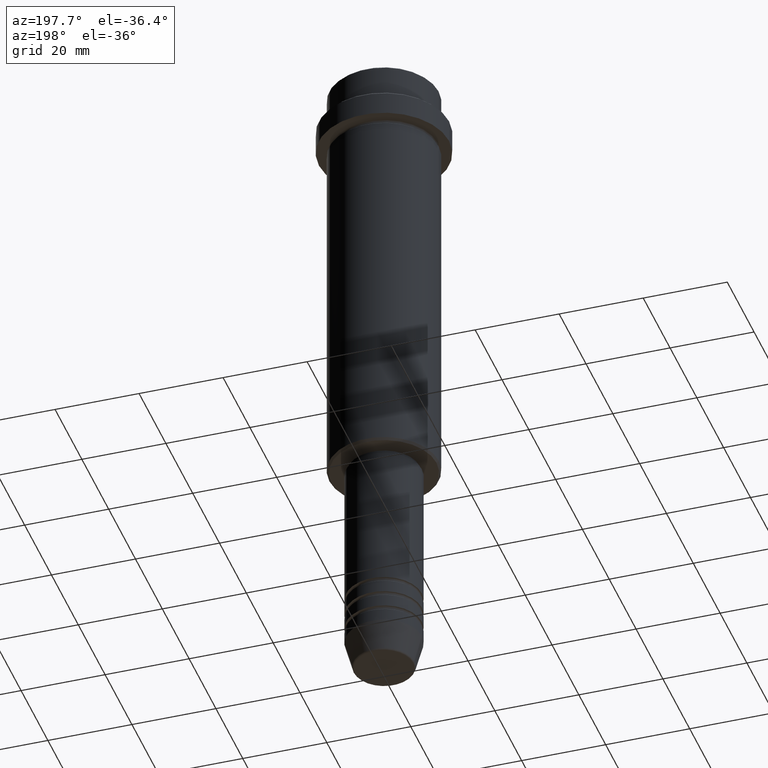
[diagram: clean part render]
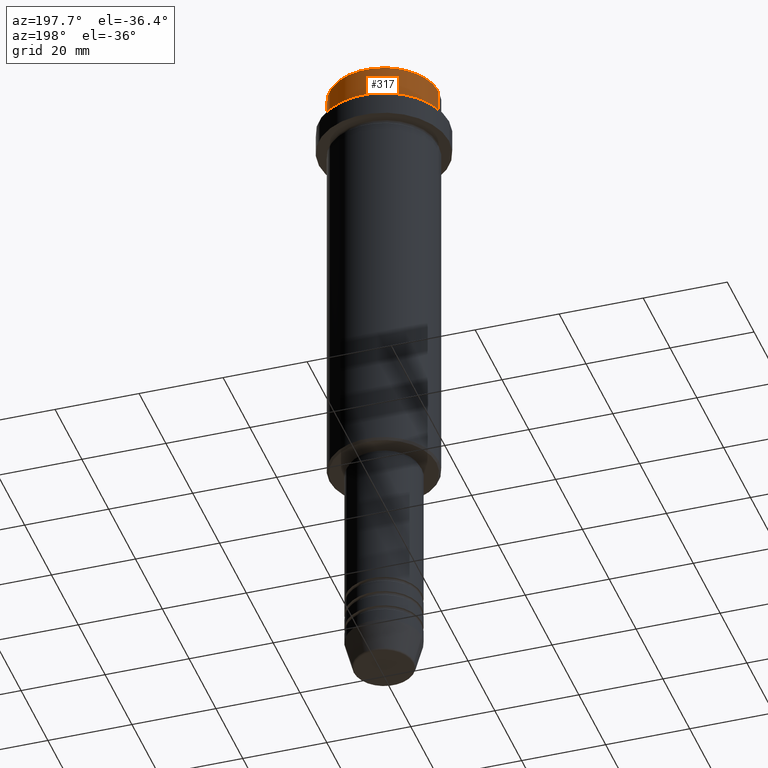
[diagram: same view with one face highlighted and labeled with its STEP entity id]
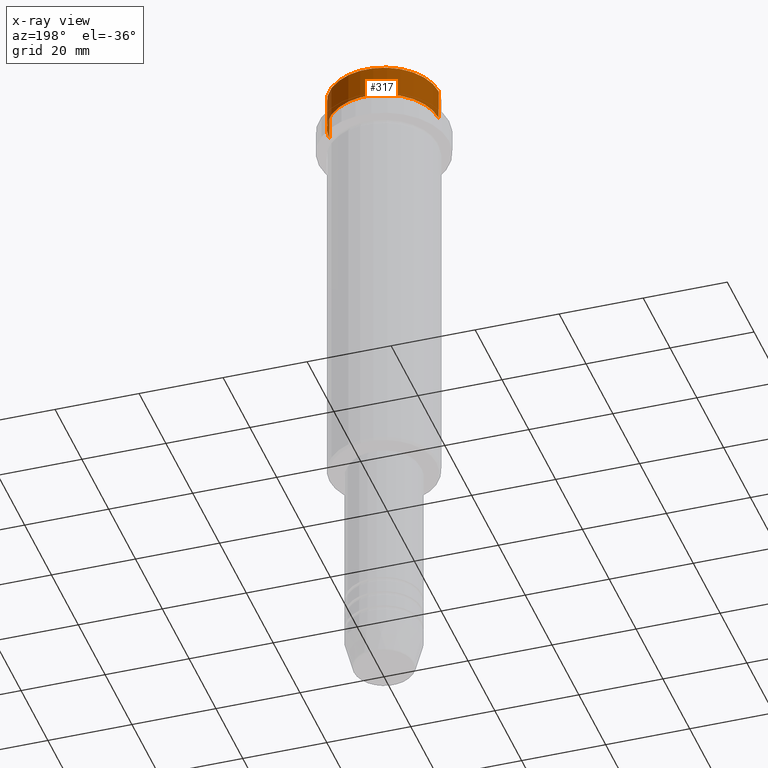
[diagram: x-ray of the same camera — body ghosted, the highlighted face saturated]
A machine part, auxiliary view. The second image highlights one B-rep face of the part: STEP entity #317.
The next image is the same camera in x-ray: the body ghosted, the highlighted face saturated — about 0% of this face is hidden behind the body in this view.
In plain terms, the highlighted cylindrical surface (partial cylindrical patch) has radius 13 mm, axis along (-0, -0, 1).
Its self-contained STEP definition (entity closure, byte-faithful):
#26 = LINE ( 'NONE', #686, #1267 ) ;
#145 = EDGE_CURVE ( 'NONE', #776, #730, #159, .T. ) ;
#159 = LINE ( 'NONE', #1028, #470 ) ;
#211 = CARTESIAN_POINT ( 'NONE',  ( 0.000000000000000000, 0.000000000000000000, -0.4999999999999622524 ) ) ;
#257 = DIRECTION ( 'NONE',  ( -0.000000000000000000, -0.000000000000000000, 1.000000000000000000 ) ) ;
#317 = ADVANCED_FACE ( 'NONE', ( #694 ), #1100, .T. ) ;
#324 = DIRECTION ( 'NONE',  ( 1.000000000000000000, 0.000000000000000000, 0.000000000000000000 ) ) ;
#379 = CIRCLE ( 'NONE', #569, 12.99999999999999822 ) ;
#432 = AXIS2_PLACEMENT_3D ( 'NONE', #211, #1175, #1396 ) ;
#470 = VECTOR ( 'NONE', #494, 1000.000000000000000 ) ;
#494 = DIRECTION ( 'NONE',  ( -0.000000000000000000, -0.000000000000000000, 1.000000000000000000 ) ) ;
#531 = CARTESIAN_POINT ( 'NONE',  ( 12.99999999999999822, 0.000000000000000000, -0.4999999999999622524 ) ) ;
#569 = AXIS2_PLACEMENT_3D ( 'NONE', #1407, #865, #324 ) ;
#609 = EDGE_LOOP ( 'NONE', ( #958, #962, #647, #1416 ) ) ;
#647 = ORIENTED_EDGE ( 'NONE', *, *, #1099, .T. ) ;
#686 = CARTESIAN_POINT ( 'NONE',  ( -12.99999999999999822, 1.592040838891558898E-15, 0.000000000000000000 ) ) ;
#694 = FACE_OUTER_BOUND ( 'NONE', #609, .T. ) ;
#701 = AXIS2_PLACEMENT_3D ( 'NONE', #900, #257, #815 ) ;
#730 = VERTEX_POINT ( 'NONE', #531 ) ;
#737 = VERTEX_POINT ( 'NONE', #969 ) ;
#746 = EDGE_CURVE ( 'NONE', #776, #737, #379, .T. ) ;
#769 = VERTEX_POINT ( 'NONE', #885 ) ;
#776 = VERTEX_POINT ( 'NONE', #809 ) ;
#809 = CARTESIAN_POINT ( 'NONE',  ( 12.99999999999999822, 0.000000000000000000, -7.999999999999998224 ) ) ;
#815 = DIRECTION ( 'NONE',  ( 1.000000000000000000, 0.000000000000000000, 0.000000000000000000 ) ) ;
#865 = DIRECTION ( 'NONE',  ( -0.000000000000000000, -0.000000000000000000, 1.000000000000000000 ) ) ;
#885 = CARTESIAN_POINT ( 'NONE',  ( -12.99999999999999822, 1.592040838891558898E-15, -0.4999999999999622524 ) ) ;
#900 = CARTESIAN_POINT ( 'NONE',  ( 0.000000000000000000, 0.000000000000000000, 0.000000000000000000 ) ) ;
#901 = EDGE_CURVE ( 'NONE', #737, #769, #26, .T. ) ;
#929 = CIRCLE ( 'NONE', #432, 12.99999999999999822 ) ;
#958 = ORIENTED_EDGE ( 'NONE', *, *, #746, .T. ) ;
#962 = ORIENTED_EDGE ( 'NONE', *, *, #901, .T. ) ;
#969 = CARTESIAN_POINT ( 'NONE',  ( -12.99999999999999822, 1.592040838891558898E-15, -7.999999999999998224 ) ) ;
#1028 = CARTESIAN_POINT ( 'NONE',  ( 12.99999999999999822, 0.000000000000000000, 0.000000000000000000 ) ) ;
#1099 = EDGE_CURVE ( 'NONE', #769, #730, #929, .T. ) ;
#1100 = CYLINDRICAL_SURFACE ( 'NONE', #701, 12.99999999999999822 ) ;
#1106 = DIRECTION ( 'NONE',  ( -0.000000000000000000, -0.000000000000000000, 1.000000000000000000 ) ) ;
#1175 = DIRECTION ( 'NONE',  ( 0.000000000000000000, 0.000000000000000000, -1.000000000000000000 ) ) ;
#1267 = VECTOR ( 'NONE', #1106, 1000.000000000000000 ) ;
#1396 = DIRECTION ( 'NONE',  ( 1.000000000000000000, 0.000000000000000000, 0.000000000000000000 ) ) ;
#1407 = CARTESIAN_POINT ( 'NONE',  ( 0.000000000000000000, 0.000000000000000000, -7.999999999999998224 ) ) ;
#1416 = ORIENTED_EDGE ( 'NONE', *, *, #145, .F. ) ;